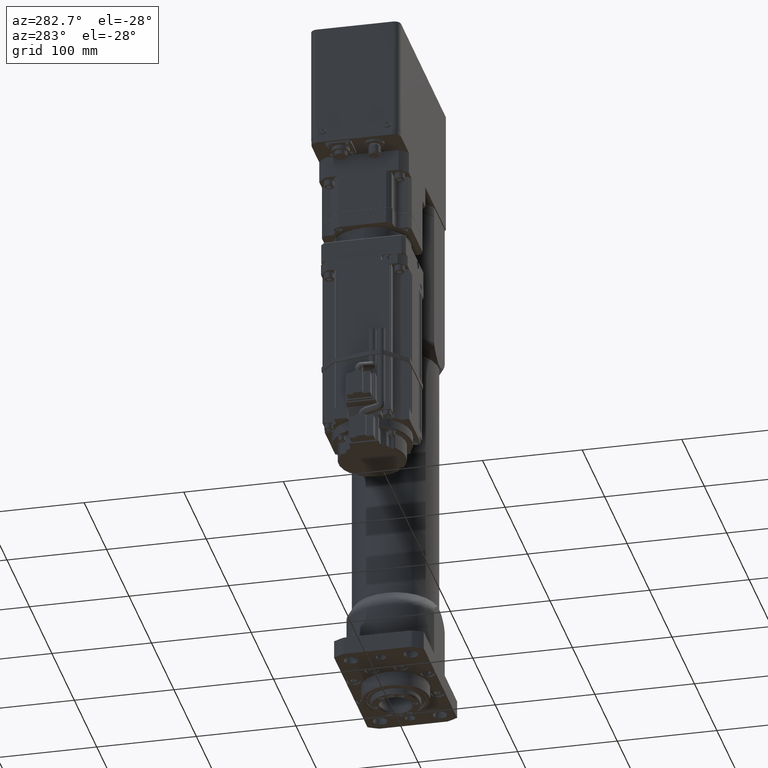
[diagram: clean part render]
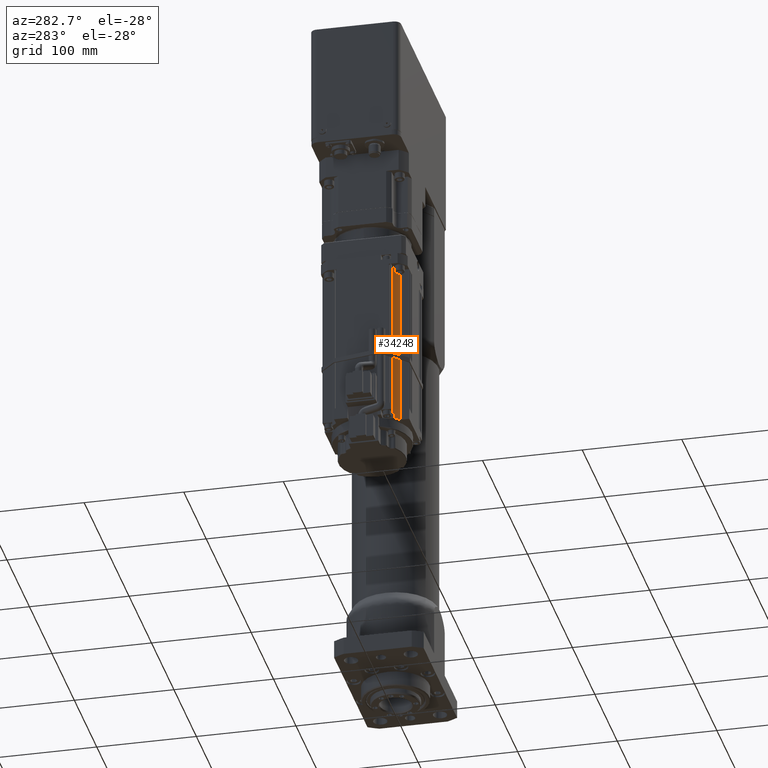
[diagram: same view with one face highlighted and labeled with its STEP entity id]
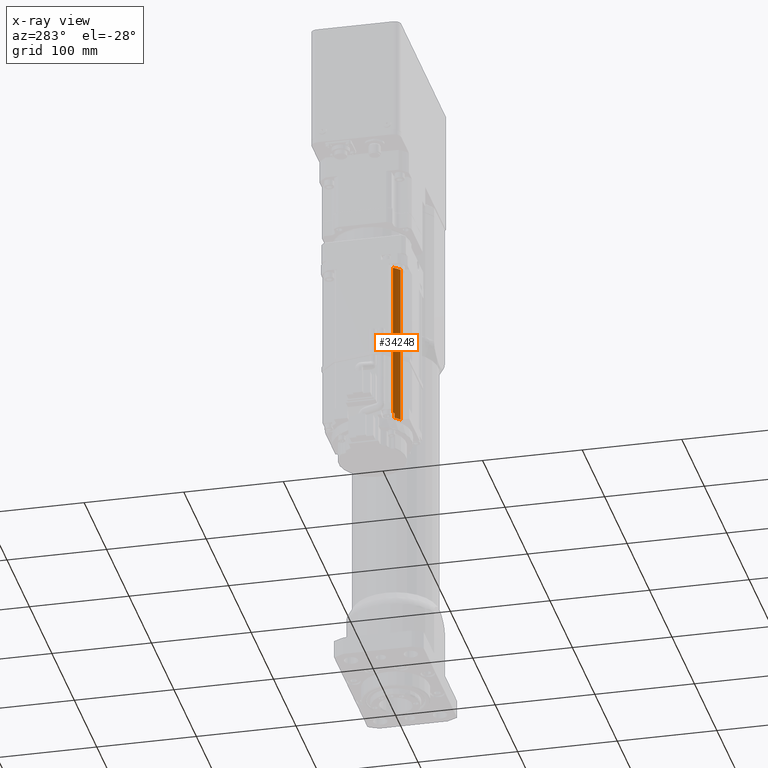
[diagram: x-ray of the same camera — body ghosted, the highlighted face saturated]
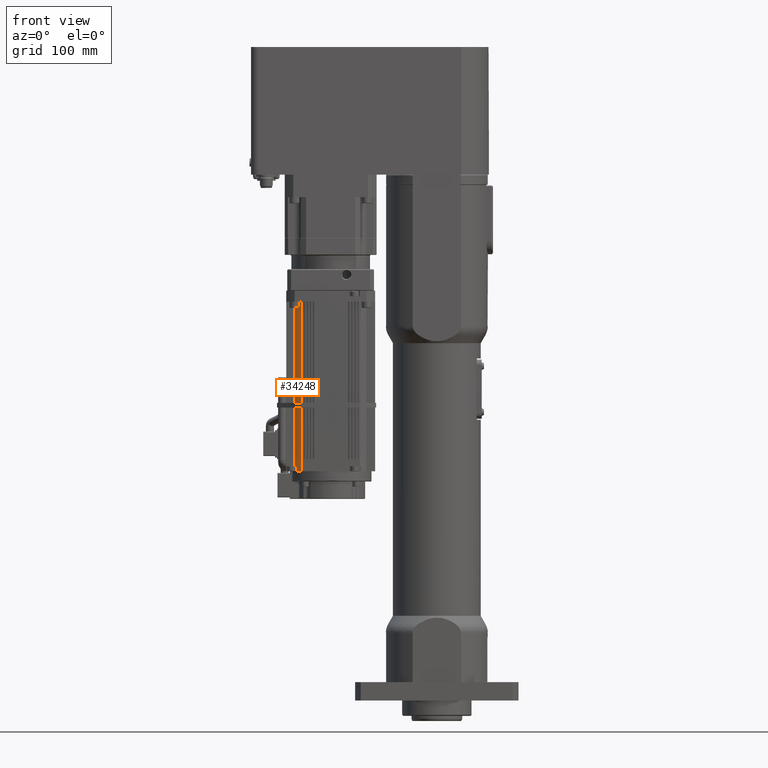
[diagram: same view with one face highlighted and labeled with its STEP entity id]
A machine part, auxiliary view. The second image highlights one B-rep face of the part: STEP entity #34248.
The next image is the same camera in x-ray: the body ghosted, the highlighted face saturated — about 0% of this face is hidden behind the body in this view.
A second angle (front view) of the same face is appended — the face is thin or edge-on in the first view.
In plain terms, the highlighted cylindrical surface (partial cylindrical patch) has radius 45 mm, axis along (0, 0, 1).
Its self-contained STEP definition (entity closure, byte-faithful):
#2677=FACE_OUTER_BOUND('',#4531,.T.);
#4531=EDGE_LOOP('',(#25246,#25247,#25248,#25249,#25250,#25251,#25252,#25253,
#25254));
#6004=CIRCLE('',#35763,45.);
#6007=CIRCLE('',#35766,45.);
#6424=CIRCLE('',#36698,45.);
#6432=CIRCLE('',#36719,45.);
#8233=LINE('',#51417,#10929);
#8990=LINE('',#53788,#11686);
#8993=LINE('',#53795,#11689);
#8994=LINE('',#53796,#11690);
#10929=VECTOR('',#40539,10.);
#11686=VECTOR('',#42982,10.);
#11689=VECTOR('',#42991,10.);
#11690=VECTOR('',#42992,10.);
#13031=VERTEX_POINT('',#49076);
#13032=VERTEX_POINT('',#49078);
#13395=VERTEX_POINT('',#50599);
#13397=VERTEX_POINT('',#50605);
#13691=VERTEX_POINT('',#51416);
#14386=VERTEX_POINT('',#53725);
#14406=VERTEX_POINT('',#53787);
#14407=VERTEX_POINT('',#53791);
#16818=EDGE_CURVE('',#13031,#13395,#6004,.T.);
#16821=EDGE_CURVE('',#13397,#13031,#6007,.T.);
#17256=EDGE_CURVE('',#13691,#13397,#8233,.T.);
#18373=EDGE_CURVE('',#13691,#14386,#6424,.T.);
#18403=EDGE_CURVE('',#14406,#14386,#8990,.T.);
#18405=EDGE_CURVE('',#14407,#14406,#6432,.T.);
#18407=EDGE_CURVE('',#13032,#13031,#8993,.T.);
#18408=EDGE_CURVE('',#14407,#13395,#8994,.T.);
#25246=ORIENTED_EDGE('',*,*,#18405,.T.);
#25247=ORIENTED_EDGE('',*,*,#18403,.T.);
#25248=ORIENTED_EDGE('',*,*,#18373,.F.);
#25249=ORIENTED_EDGE('',*,*,#17256,.T.);
#25250=ORIENTED_EDGE('',*,*,#16821,.T.);
#25251=ORIENTED_EDGE('',*,*,#18407,.F.);
#25252=ORIENTED_EDGE('',*,*,#18407,.T.);
#25253=ORIENTED_EDGE('',*,*,#16818,.T.);
#25254=ORIENTED_EDGE('',*,*,#18408,.F.);
#31538=CYLINDRICAL_SURFACE('',#36720,45.);
#34248=ADVANCED_FACE('',(#2677),#31538,.T.);
#35763=AXIS2_PLACEMENT_3D('',#50601,#39925,#39926);
#35766=AXIS2_PLACEMENT_3D('',#50606,#39931,#39932);
#36698=AXIS2_PLACEMENT_3D('',#53726,#42920,#42921);
#36719=AXIS2_PLACEMENT_3D('',#53792,#42986,#42987);
#36720=AXIS2_PLACEMENT_3D('',#53794,#42989,#42990);
#39925=DIRECTION('center_axis',(-5.48319528505112E-14,-1.00722983923794E-14,
-1.));
#39926=DIRECTION('ref_axis',(0.633333333333352,0.773879117749578,-4.25216448655965E-14));
#39931=DIRECTION('center_axis',(-5.48319528505112E-14,-1.00722983923794E-14,
-1.));
#39932=DIRECTION('ref_axis',(0.633333333333352,0.773879117749578,-4.25216448655965E-14));
#40539=DIRECTION('',(5.48319528505112E-14,1.00722983923794E-14,1.));
#42920=DIRECTION('center_axis',(-5.48319528505112E-14,-1.00722983923794E-14,
-1.));
#42921=DIRECTION('ref_axis',(0.633333333333352,0.773879117749578,-4.25216448655965E-14));
#42982=DIRECTION('',(-5.48319528505112E-14,-1.00722983923794E-14,-1.));
#42986=DIRECTION('center_axis',(5.48319528505112E-14,1.00722983923794E-14,
1.));
#42987=DIRECTION('ref_axis',(0.633333333333352,0.773879117749578,-4.25216448655965E-14));
#42989=DIRECTION('center_axis',(5.48319528505112E-14,1.00722983923794E-14,
1.));
#42990=DIRECTION('ref_axis',(0.633333333333352,0.773879117749578,-4.25216448655965E-14));
#42991=DIRECTION('',(5.48319528505112E-14,1.00722983923794E-14,1.));
#42992=DIRECTION('',(5.48319528505112E-14,1.00722983923794E-14,1.));
#49076=CARTESIAN_POINT('',(-135.816738194451,-31.8198051534177,372.500000000005));
#49078=CARTESIAN_POINT('',(-135.816738194451,-31.8198051534177,367.100000000005));
#50599=CARTESIAN_POINT('',(-138.821493339765,-28.5000000000216,372.500000000006));
#50601=CARTESIAN_POINT('Origin',(-103.996933041033,-2.24796095764327E-11,
372.500000000004));
#50605=CARTESIAN_POINT('',(-132.496933041034,-34.8245602987535,372.500000000006));
#50606=CARTESIAN_POINT('Origin',(-103.996933041033,-2.24796095764327E-11,
372.500000000004));
#51416=CARTESIAN_POINT('',(-132.496933041043,-34.8245602987552,206.500000000006));
#51417=CARTESIAN_POINT('',(-132.496933041043,-34.8245602987552,206.500000000006));
#53725=CARTESIAN_POINT('',(-137.496933041043,-30.0457983751706,206.500000000006));
#53726=CARTESIAN_POINT('Origin',(-103.996933041042,-2.41516111095676E-11,
206.500000000004));
#53787=CARTESIAN_POINT('',(-137.496933041043,-30.0457983751705,211.500000000006));
#53788=CARTESIAN_POINT('',(-137.496933041043,-30.0457983751706,206.500000000006));
#53791=CARTESIAN_POINT('',(-138.821493339774,-28.5000000000232,211.500000000006));
#53792=CARTESIAN_POINT('Origin',(-103.996933041042,-2.41012496176057E-11,
211.500000000004));
#53794=CARTESIAN_POINT('Origin',(-103.996933041042,-2.41516111095676E-11,
206.500000000004));
#53795=CARTESIAN_POINT('',(-135.816738194444,-31.8198051534112,206.500000000004));
#53796=CARTESIAN_POINT('',(-138.821493339775,-28.5000000000233,206.500000000006));